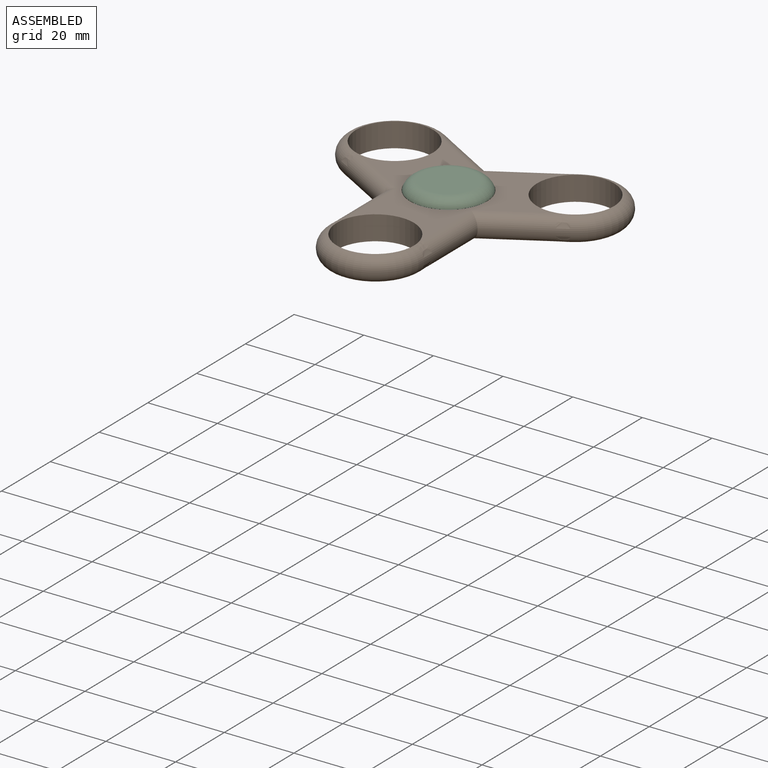
[diagram: assembled view]
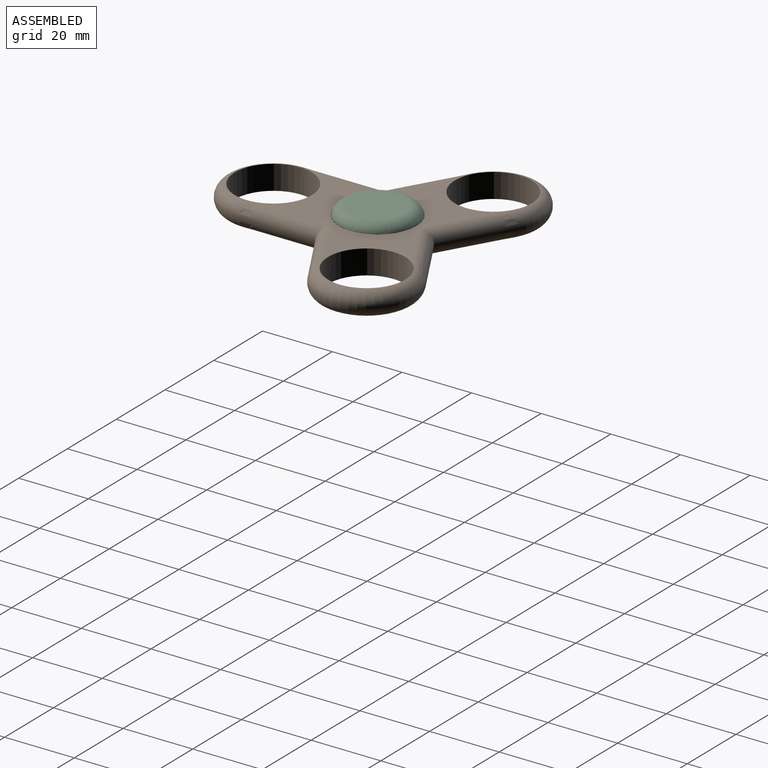
[diagram: assembled view, second angle]
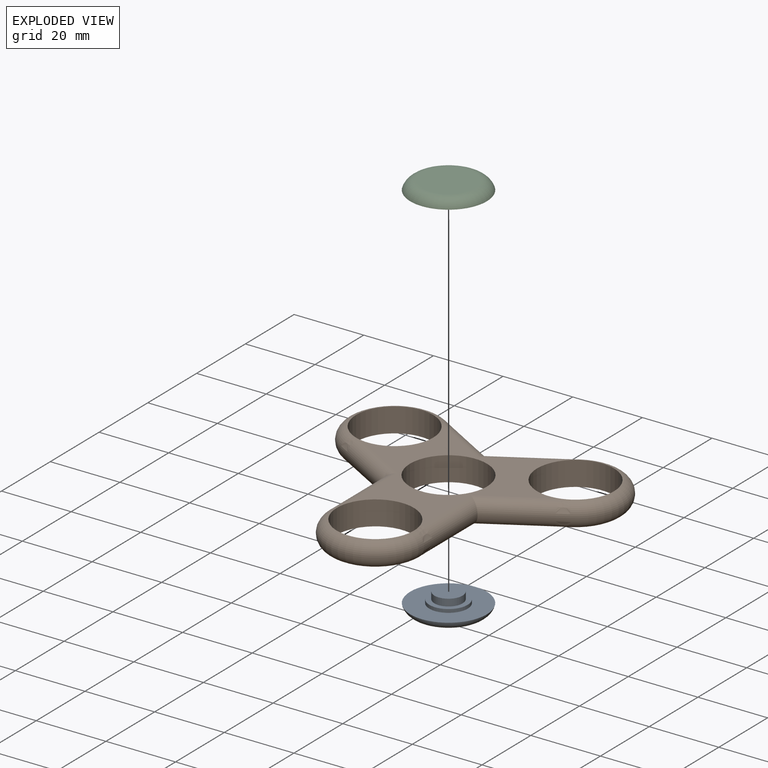
[diagram: exploded view]
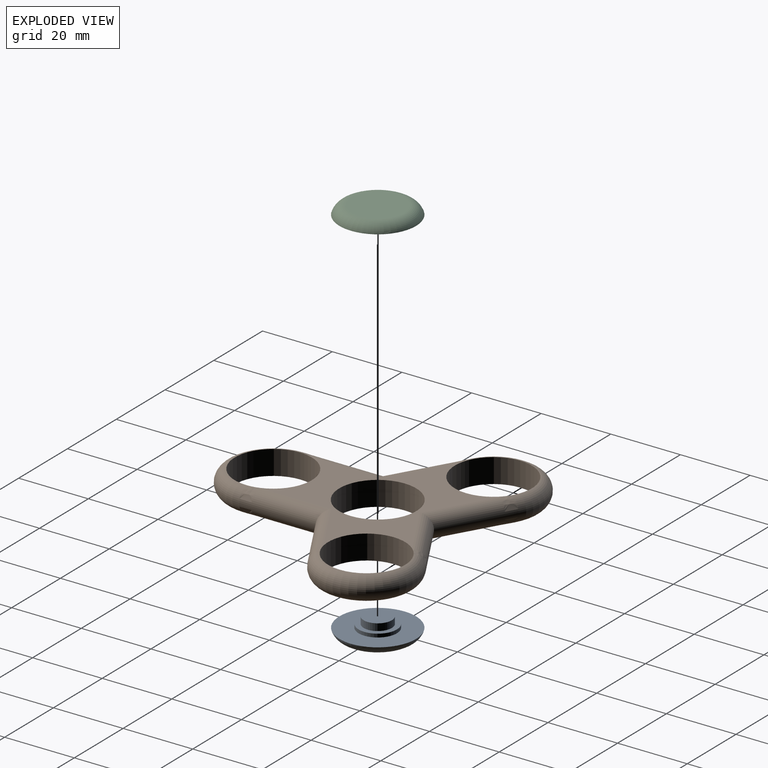
[diagram: exploded view, second angle]
ASSEMBLY  parts=3 mates=2
PART A: 7 faces, bbox 24.1x24.1x5.5 mm
  f0: plane 22x22mm, normal (0,0,1), area 285.1mm2, adj f2,f6
  f1: plane 15.29x15.29mm, normal (0,0,-1), area 183.7mm2, adj f6
  f2: cylinder r=5.5mm len=11mm, axis (0,0,-1), area 34.6mm2, adj f0,f3
  f3: plane 11x11mm, normal (0,0,1), area 43.5mm2, adj f2,f4
  f4: cylinder r=4.05mm len=8.1mm, axis (0,0,-1), area 50.9mm2, adj f3,f5
  f5: plane 8.1x8.1mm, normal (0,0,1), area 51.5mm2, adj f4
  f6: torus R=7.65mm, axis (0,0,-1), area 270.4mm2, adj f0,f1
PART B: 39 faces, bbox 82.3x75.3x7.7 mm
  f0: plane 3.49x0.09mm, normal (-1,0,0), area 0.2mm2, adj f1,f19,f35
  f1: cylinder r=14mm len=28mm, axis (0,0,-1), area 4mm2, adj f0,f2,f17,f34
  f2: plane 3.49x0.09mm, normal (1,0,0), area 0.2mm2, adj f1,f15,f33
  f3: cylinder r=11.06mm len=22.13mm, axis (0,0,-1), area 486.7mm2, adj f5,f6
  f4: cylinder r=11.06mm len=22.13mm, axis (0,0,-1), area 486.7mm2, adj f5,f6,f15,f17,f19,f33,f34,f35
  f5: plane 56.42x48.86mm, normal (0,0,1), area 745.4mm2, adj f3,f4,f10,f14,f16,f18,f21,f23
  f6: plane 56.42x48.86mm, normal (0,0,-1), area 745.4mm2, adj f3,f4,f10,f14,f16,f18,f21,f23
  f7: plane 3.02x1.75mm, normal (0.5,-0.87,0), area 0.2mm2, adj f8,f20,f30
  f8: cylinder r=14mm len=26.12mm, axis (0,0,-1), area 4mm2, adj f7,f9,f22,f31
  f9: plane 3.02x1.75mm, normal (-0.5,0.87,0), area 0.2mm2, adj f8,f24,f32
  f10: cylinder r=11.06mm len=22.13mm, axis (0,0,-1), area 486.7mm2, adj f5,f6,f20,f22,f24,f30,f31,f32
  f11: plane 3.02x1.75mm, normal (0.5,0.87,0), area 0.2mm2, adj f12,f29,f36
  f12: cylinder r=14mm len=26.12mm, axis (0,0,-1), area 4mm2, adj f11,f13,f27,f37
  f13: plane 3.02x1.75mm, normal (-0.5,-0.87,0), area 0.2mm2, adj f12,f25,f38
  f14: cylinder r=11.06mm len=22.13mm, axis (0,0,-1), area 486.7mm2, adj f5,f6,f25,f27,f29,f36,f37,f38
  f15: bspline ~5.11x3.87mm, area 17.9mm2, adj f2,f4,f16,f17
  f16: cylinder r=3.5mm len=20.45mm, axis (0,-1,0), area 213.7mm2, adj f5,f6,f15,f18,f33
  f17: torus R=10.5mm, axis (0,0,1), area 200.6mm2, adj f1,f4,f15,f19
  f18: cylinder r=3.5mm len=19.46mm, axis (-0.87,-0.5,0), area 213.7mm2, adj f5,f6,f16,f20,f30
  f19: bspline ~5.11x3.87mm, area 17.9mm2, adj f0,f4,f17,f21
  f20: bspline ~6.14x5.1mm, area 17.9mm2, adj f7,f10,f18,f22
  f21: cylinder r=3.5mm len=20.45mm, axis (0,1,0), area 213.7mm2, adj f5,f6,f19,f23,f35
  f22: torus R=10.5mm, axis (0,0,1), area 200.6mm2, adj f8,f10,f20,f24
  f23: cylinder r=3.5mm len=19.46mm, axis (-0.87,0.5,0), area 213.7mm2, adj f5,f6,f21,f25,f38
  f24: bspline ~5.86x5.66mm, area 17.9mm2, adj f9,f10,f22,f26
  f25: bspline ~6.14x5.1mm, area 17.9mm2, adj f13,f14,f23,f27
  f26: cylinder r=3.5mm len=19.46mm, axis (0.87,0.5,0), area 213.7mm2, adj f5,f6,f24,f28,f32
  f27: torus R=10.5mm, axis (0,0,1), area 200.6mm2, adj f12,f14,f25,f29
  f28: cylinder r=3.5mm len=19.46mm, axis (0.87,-0.5,0), area 213.7mm2, adj f5,f6,f26,f29,f36
  f29: bspline ~5.86x5.66mm, area 17.9mm2, adj f11,f14,f27,f28
  f30: bspline ~6.14x5.1mm, area 17.9mm2, adj f7,f10,f18,f31
  f31: torus R=10.5mm, axis (0,0,-1), area 200.6mm2, adj f8,f10,f30,f32
  f32: bspline ~5.86x5.66mm, area 17.9mm2, adj f9,f10,f26,f31
  f33: bspline ~5.11x3.87mm, area 17.9mm2, adj f2,f4,f16,f34
  f34: torus R=10.5mm, axis (0,0,-1), area 200.6mm2, adj f1,f4,f33,f35
  f35: bspline ~5.11x3.87mm, area 17.9mm2, adj f0,f4,f21,f34
  f36: bspline ~5.86x5.66mm, area 17.9mm2, adj f11,f14,f28,f37
  f37: torus R=10.5mm, axis (0,0,-1), area 200.6mm2, adj f12,f14,f36,f38
  f38: bspline ~6.14x5.1mm, area 17.9mm2, adj f13,f14,f23,f37
PART C: same geometry as A
PLACE A rot(axis=(0,1,0),0deg) t=(-20.74,-25.88,29.36)mm
PLACE B rot(axis=(0,1,0),0deg) t=(46.97,-32.99,31.86)mm
PLACE C rot(axis=(0,-1,0),180deg) t=(114.68,-25.88,41.36)mm
MATE fastened A.f2 <-> B.f3  axis (0,0,1) through (46.97,-17.99,31.86)mm
MATE fastened A.f2 <-> B.f3  axis (0,0,1) through (46.97,-17.99,31.86)mm
